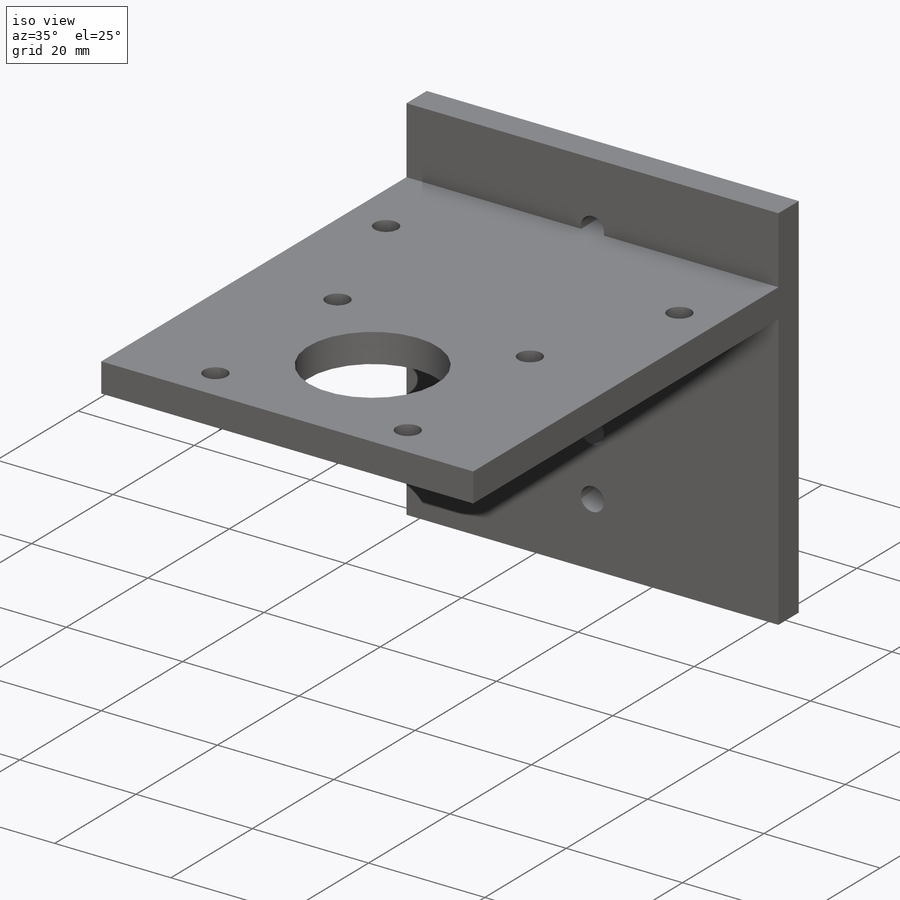
[diagram: iso view]
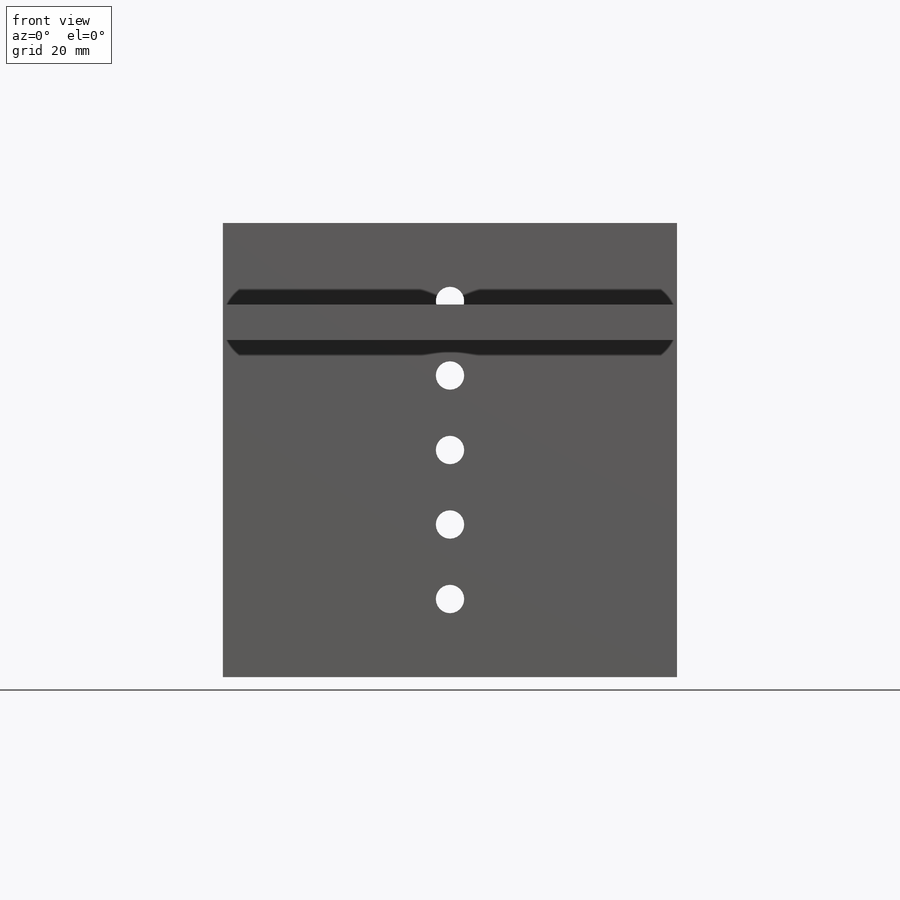
[diagram: front view]
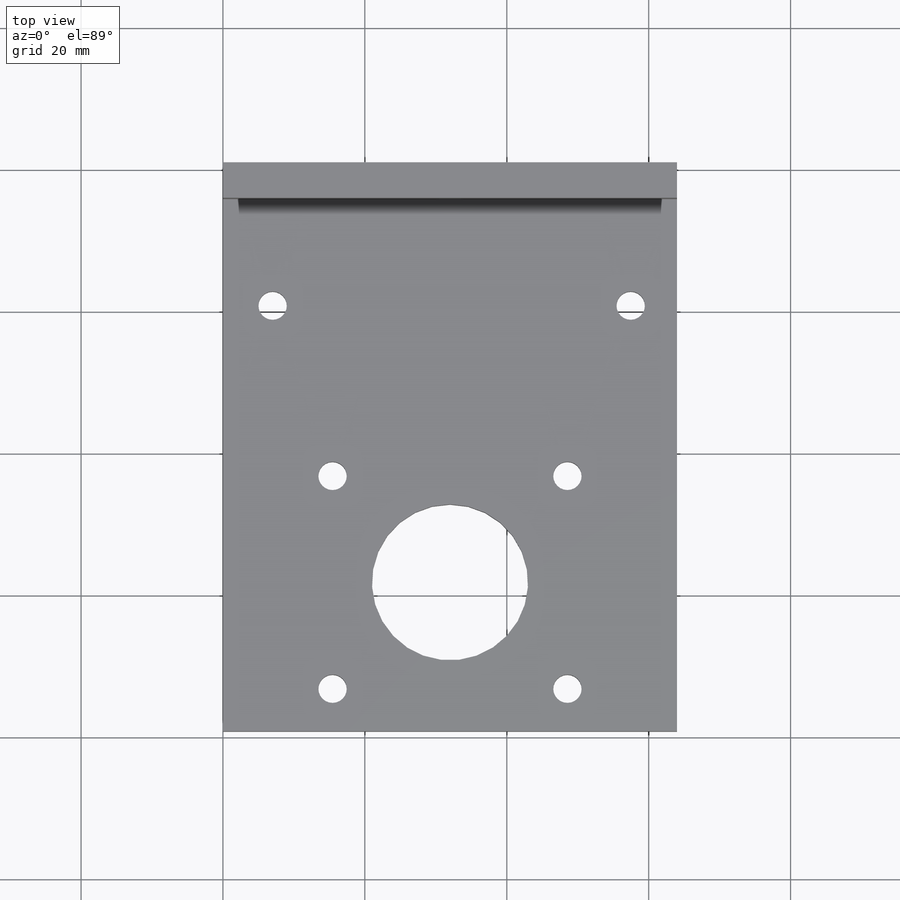
[diagram: top view]
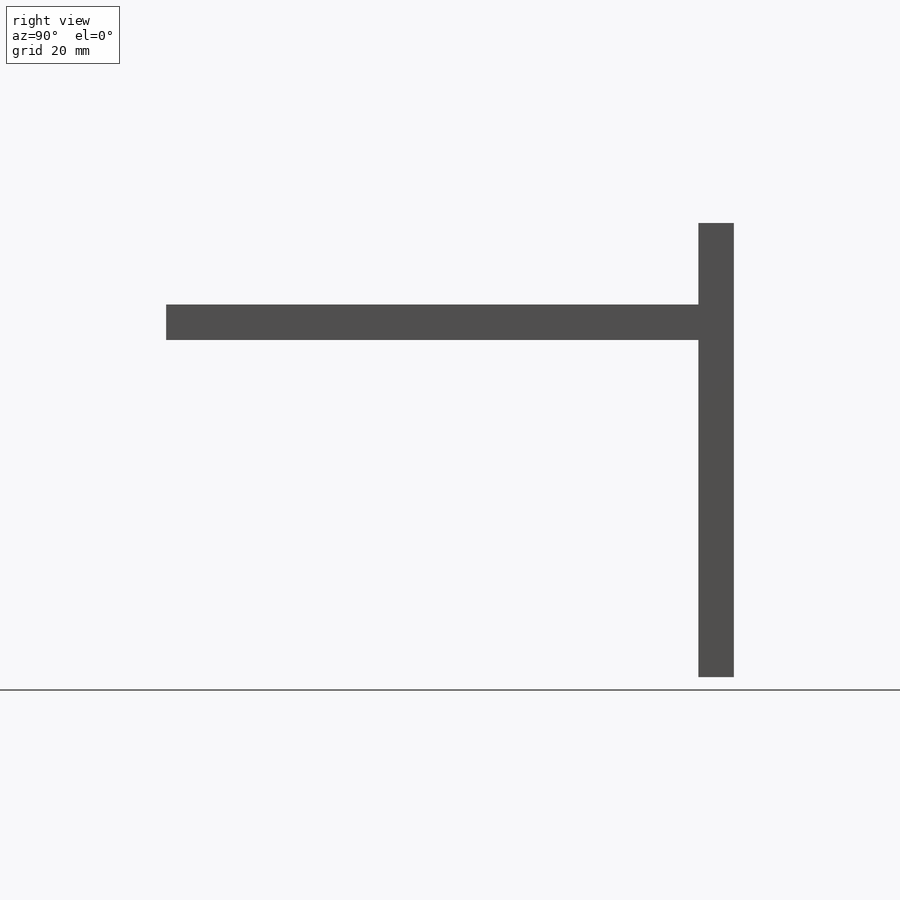
[diagram: right view]
SOLIDWORKS PART (.sldprt)
format: sldprt  version: not decoded by parser v0  size: 215,552 bytes
history: native  units: mm
features: plane x3, sketch x3, extrude x2, material x1, cut_extrude x1 (+10 scaffold rows collapsed)
feature tree (20):
  scaffold x10  (default folders/planes/origin — collapsed)
  material  "Material <não especificado>"
  plane  "Plano frontal"
  plane  "Plano superior"
  plane  "Plano direito"
  sketch  "Esboço1"  dims[D4=4.0mm D5=4.0mm D6=4.0mm D10=4.0mm D11=4.0mm D1=64.0mm D2=64.0mm D3=10.5mm D7=10.5mm D8=10.5mm D9=10.5mm]
  extrude  "Ressalto-extrusão1"  Depth=5mm
  sketch  "Esboço2"  dims[D1=15.5mm D2=5.0mm]
  extrude  "Ressalto-extrusão3"  Depth=80mm
  sketch  "Esboço3"  dims[c1.D1=22.0mm c1.D8=4.0mm c1.D9=4.0mm c1.D10=4.0mm c1.D11=4.0mm c1.D14=4.0mm c1.D15=4.0mm c1.D2=21.0mm c1.D3=16.55mm c1.D4=16.55mm c1.D5=15.0mm c1.D6=15.0mm c1.D7=16.55mm c1.D12=15.0mm c1.D13=15.0mm c2.D14=15.0mm]
  cut_extrude  "Corte-extrusão1"  Depth=114mm
decode coverage: 6 of 6 modeling features carry decoded parameters
note: suppression state not decoded; provenance and decode notes live in map.json
